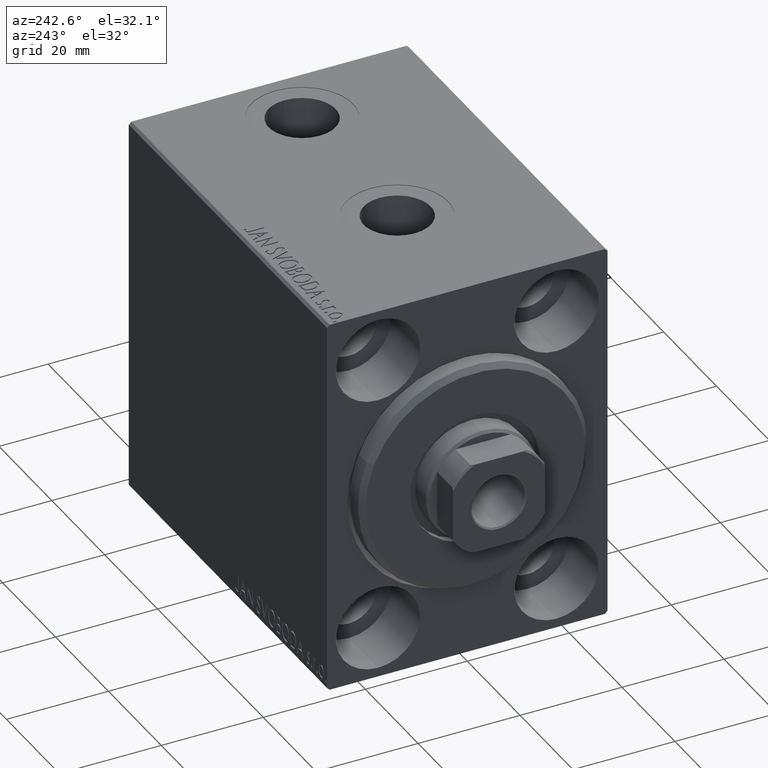
[diagram: clean part render]
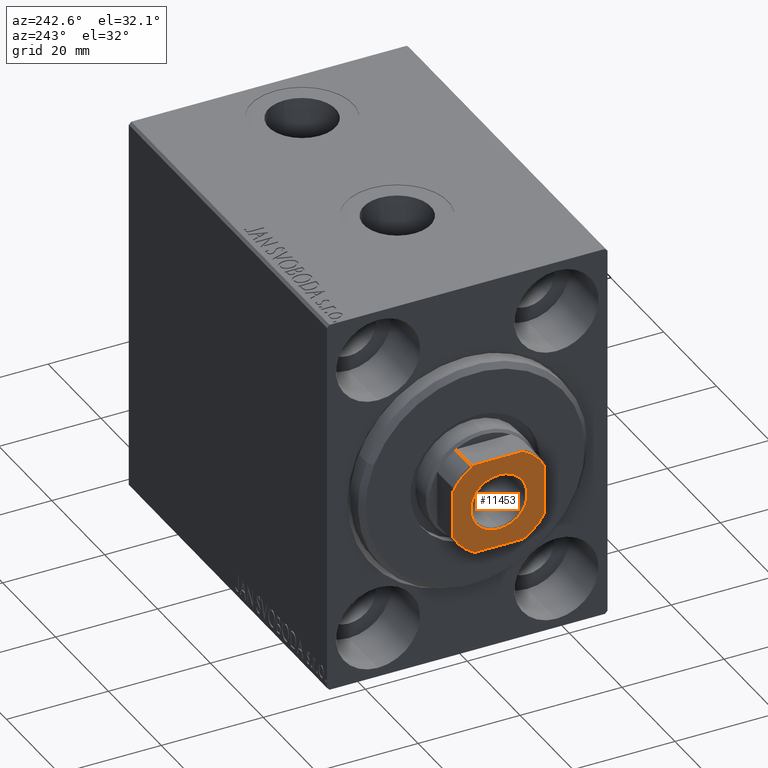
[diagram: same view with one face highlighted and labeled with its STEP entity id]
A machine part, auxiliary view. The second image highlights one B-rep face of the part: STEP entity #11453.
In plain terms, the highlighted planar face has unit normal (-1, 0, 0).
Its self-contained STEP definition (entity closure, byte-faithful):
#199 = DIRECTION ( 'NONE',  ( -0.000000000000000000, 0.000000000000000000, 1.000000000000000000 ) ) ;
#210 = AXIS2_PLACEMENT_3D ( 'NONE', #23498, #6599, #24151 ) ;
#295 = ORIENTED_EDGE ( 'NONE', *, *, #19459, .T. ) ;
#355 = DIRECTION ( 'NONE',  ( 0.000000000000000000, -0.000000000000000000, -1.000000000000000000 ) ) ;
#619 = VERTEX_POINT ( 'NONE', #22184 ) ;
#1138 = CARTESIAN_POINT ( 'NONE',  ( 8.999999999999998224, 8.999999999999998224, 77.00000000000001421 ) ) ;
#1464 = CIRCLE ( 'NONE', #18492, 10.20000000000000462 ) ;
#1706 = CARTESIAN_POINT ( 'NONE',  ( -4.799999999999990941, 8.999999999999998224, 77.00000000000001421 ) ) ;
#1945 = EDGE_CURVE ( 'NONE', #4941, #38982, #1464, .T. ) ;
#2309 = DIRECTION ( 'NONE',  ( 0.000000000000000000, -0.000000000000000000, -1.000000000000000000 ) ) ;
#2680 = CARTESIAN_POINT ( 'NONE',  ( 4.800000000000012257, 8.999999999999998224, 77.00000000000001421 ) ) ;
#4941 = VERTEX_POINT ( 'NONE', #43210 ) ;
#5770 = CARTESIAN_POINT ( 'NONE',  ( -9.000000000000001776, 8.999999999999998224, 77.00000000000001421 ) ) ;
#5968 = AXIS2_PLACEMENT_3D ( 'NONE', #30669, #199, #28203 ) ;
#6490 = DIRECTION ( 'NONE',  ( -1.000000000000000000, -0.000000000000000000, -0.000000000000000000 ) ) ;
#6495 = EDGE_LOOP ( 'NONE', ( #34109, #29510, #15819, #295, #41544, #43100, #36839, #22291 ) ) ;
#6599 = DIRECTION ( 'NONE',  ( -0.000000000000000000, 0.000000000000000000, 1.000000000000000000 ) ) ;
#6872 = FACE_BOUND ( 'NONE', #39361, .T. ) ;
#7088 = DIRECTION ( 'NONE',  ( 1.000000000000000000, 0.000000000000000000, 0.000000000000000000 ) ) ;
#7583 = DIRECTION ( 'NONE',  ( -1.927470528863119049E-16, 1.000000000000000000, -0.000000000000000000 ) ) ;
#7974 = VECTOR ( 'NONE', #6490, 1000.000000000000000 ) ;
#8022 = DIRECTION ( 'NONE',  ( 1.000000000000000000, 0.000000000000000000, 0.000000000000000000 ) ) ;
#8846 = VERTEX_POINT ( 'NONE', #38890 ) ;
#9423 = EDGE_CURVE ( 'NONE', #8846, #11108, #32901, .T. ) ;
#10155 = AXIS2_PLACEMENT_3D ( 'NONE', #24638, #41337, #7088 ) ;
#11108 = VERTEX_POINT ( 'NONE', #28260 ) ;
#11292 = AXIS2_PLACEMENT_3D ( 'NONE', #38223, #35133, #32231 ) ;
#11453 = ADVANCED_FACE ( 'NONE', ( #6872, #17075 ), #38227, .T. ) ;
#13415 = VECTOR ( 'NONE', #8022, 1000.000000000000000 ) ;
#13511 = LINE ( 'NONE', #5770, #42507 ) ;
#14137 = VECTOR ( 'NONE', #7583, 1000.000000000000000 ) ;
#14331 = VERTEX_POINT ( 'NONE', #31023 ) ;
#14491 = EDGE_CURVE ( 'NONE', #11108, #8846, #35375, .T. ) ;
#14992 = VERTEX_POINT ( 'NONE', #17542 ) ;
#15129 = AXIS2_PLACEMENT_3D ( 'NONE', #37948, #355, #27913 ) ;
#15819 = ORIENTED_EDGE ( 'NONE', *, *, #31853, .T. ) ;
#16124 = CARTESIAN_POINT ( 'NONE',  ( 9.000000000000001776, -4.800000000000007816, 77.00000000000001421 ) ) ;
#16171 = EDGE_CURVE ( 'NONE', #14992, #14331, #13511, .T. ) ;
#16541 = CIRCLE ( 'NONE', #210, 10.20000000000000462 ) ;
#16960 = CIRCLE ( 'NONE', #11292, 10.19999999999999396 ) ;
#17075 = FACE_OUTER_BOUND ( 'NONE', #6495, .T. ) ;
#17542 = CARTESIAN_POINT ( 'NONE',  ( -9.000000000000001776, 4.799999999999986500, 77.00000000000001421 ) ) ;
#18326 = EDGE_CURVE ( 'NONE', #619, #4941, #32053, .T. ) ;
#18492 = AXIS2_PLACEMENT_3D ( 'NONE', #32957, #26466, #39825 ) ;
#19321 = DIRECTION ( 'NONE',  ( 1.927470528863119049E-16, -1.000000000000000000, 0.000000000000000000 ) ) ;
#19459 = EDGE_CURVE ( 'NONE', #35860, #14992, #16960, .T. ) ;
#19843 = CARTESIAN_POINT ( 'NONE',  ( 0.000000000000000000, 0.000000000000000000, 77.00000000000001421 ) ) ;
#21516 = CIRCLE ( 'NONE', #10155, 10.19999999999999929 ) ;
#22184 = CARTESIAN_POINT ( 'NONE',  ( -4.799999999999995381, -9.000000000000001776, 77.00000000000001421 ) ) ;
#22291 = ORIENTED_EDGE ( 'NONE', *, *, #1945, .T. ) ;
#22974 = DIRECTION ( 'NONE',  ( 1.000000000000000000, 0.000000000000000000, 0.000000000000000000 ) ) ;
#23498 = CARTESIAN_POINT ( 'NONE',  ( 0.000000000000000000, 0.000000000000000000, 77.00000000000001421 ) ) ;
#23926 = EDGE_CURVE ( 'NONE', #38982, #41656, #24918, .T. ) ;
#24151 = DIRECTION ( 'NONE',  ( 1.000000000000000000, 0.000000000000000000, 0.000000000000000000 ) ) ;
#24638 = CARTESIAN_POINT ( 'NONE',  ( 0.000000000000000000, 0.000000000000000000, 77.00000000000001421 ) ) ;
#24918 = LINE ( 'NONE', #1138, #14137 ) ;
#25149 = CARTESIAN_POINT ( 'NONE',  ( -8.999999999999998224, -9.000000000000001776, 77.00000000000001421 ) ) ;
#25331 = ORIENTED_EDGE ( 'NONE', *, *, #9423, .T. ) ;
#26466 = DIRECTION ( 'NONE',  ( -0.000000000000000000, 0.000000000000000000, 1.000000000000000000 ) ) ;
#27913 = DIRECTION ( 'NONE',  ( 1.000000000000000000, 0.000000000000000000, 0.000000000000000000 ) ) ;
#28203 = DIRECTION ( 'NONE',  ( 1.000000000000000000, 0.000000000000000000, 0.000000000000000000 ) ) ;
#28260 = CARTESIAN_POINT ( 'NONE',  ( -5.550000000000013145, 6.796789735267826558E-16, 77.00000000000001421 ) ) ;
#29510 = ORIENTED_EDGE ( 'NONE', *, *, #34866, .T. ) ;
#29732 = VERTEX_POINT ( 'NONE', #2680 ) ;
#30669 = CARTESIAN_POINT ( 'NONE',  ( 0.000000000000000000, 0.000000000000000000, 77.00000000000001421 ) ) ;
#31023 = CARTESIAN_POINT ( 'NONE',  ( -8.999999999999998224, -4.799999999999999822, 77.00000000000001421 ) ) ;
#31832 = AXIS2_PLACEMENT_3D ( 'NONE', #19843, #2309, #22974 ) ;
#31853 = EDGE_CURVE ( 'NONE', #29732, #35860, #39864, .T. ) ;
#32053 = LINE ( 'NONE', #25149, #13415 ) ;
#32231 = DIRECTION ( 'NONE',  ( 1.000000000000000000, 0.000000000000000000, 0.000000000000000000 ) ) ;
#32637 = ORIENTED_EDGE ( 'NONE', *, *, #14491, .T. ) ;
#32901 = CIRCLE ( 'NONE', #15129, 5.550000000000013145 ) ;
#32957 = CARTESIAN_POINT ( 'NONE',  ( 0.000000000000000000, 0.000000000000000000, 77.00000000000001421 ) ) ;
#34109 = ORIENTED_EDGE ( 'NONE', *, *, #23926, .T. ) ;
#34866 = EDGE_CURVE ( 'NONE', #41656, #29732, #16541, .T. ) ;
#35133 = DIRECTION ( 'NONE',  ( -0.000000000000000000, 0.000000000000000000, 1.000000000000000000 ) ) ;
#35375 = CIRCLE ( 'NONE', #31832, 5.550000000000013145 ) ;
#35475 = EDGE_CURVE ( 'NONE', #14331, #619, #21516, .T. ) ;
#35860 = VERTEX_POINT ( 'NONE', #1706 ) ;
#36839 = ORIENTED_EDGE ( 'NONE', *, *, #18326, .T. ) ;
#36969 = CARTESIAN_POINT ( 'NONE',  ( -9.000000000000001776, 8.999999999999998224, 77.00000000000001421 ) ) ;
#37948 = CARTESIAN_POINT ( 'NONE',  ( 0.000000000000000000, 0.000000000000000000, 77.00000000000001421 ) ) ;
#38223 = CARTESIAN_POINT ( 'NONE',  ( 0.000000000000000000, 0.000000000000000000, 77.00000000000001421 ) ) ;
#38227 = PLANE ( 'NONE',  #5968 ) ;
#38890 = CARTESIAN_POINT ( 'NONE',  ( 5.550000000000013145, 0.000000000000000000, 77.00000000000001421 ) ) ;
#38982 = VERTEX_POINT ( 'NONE', #16124 ) ;
#39361 = EDGE_LOOP ( 'NONE', ( #25331, #32637 ) ) ;
#39825 = DIRECTION ( 'NONE',  ( 1.000000000000000000, 0.000000000000000000, 0.000000000000000000 ) ) ;
#39864 = LINE ( 'NONE', #36969, #7974 ) ;
#41118 = CARTESIAN_POINT ( 'NONE',  ( 8.999999999999998224, 4.800000000000010481, 77.00000000000001421 ) ) ;
#41337 = DIRECTION ( 'NONE',  ( -0.000000000000000000, 0.000000000000000000, 1.000000000000000000 ) ) ;
#41544 = ORIENTED_EDGE ( 'NONE', *, *, #16171, .T. ) ;
#41656 = VERTEX_POINT ( 'NONE', #41118 ) ;
#42507 = VECTOR ( 'NONE', #19321, 1000.000000000000000 ) ;
#43100 = ORIENTED_EDGE ( 'NONE', *, *, #35475, .T. ) ;
#43210 = CARTESIAN_POINT ( 'NONE',  ( 4.800000000000006928, -9.000000000000001776, 77.00000000000001421 ) ) ;